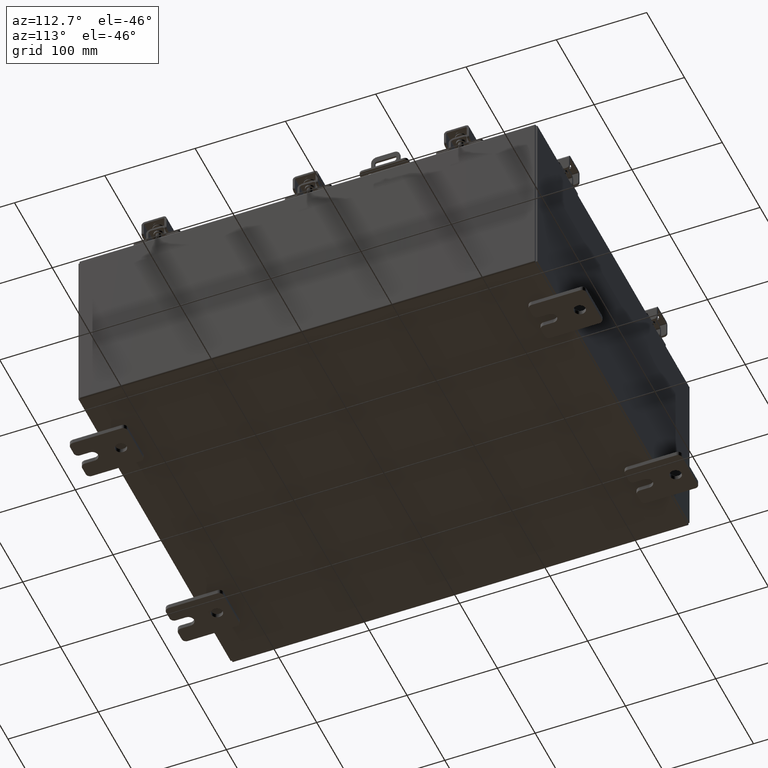
[diagram: clean part render]
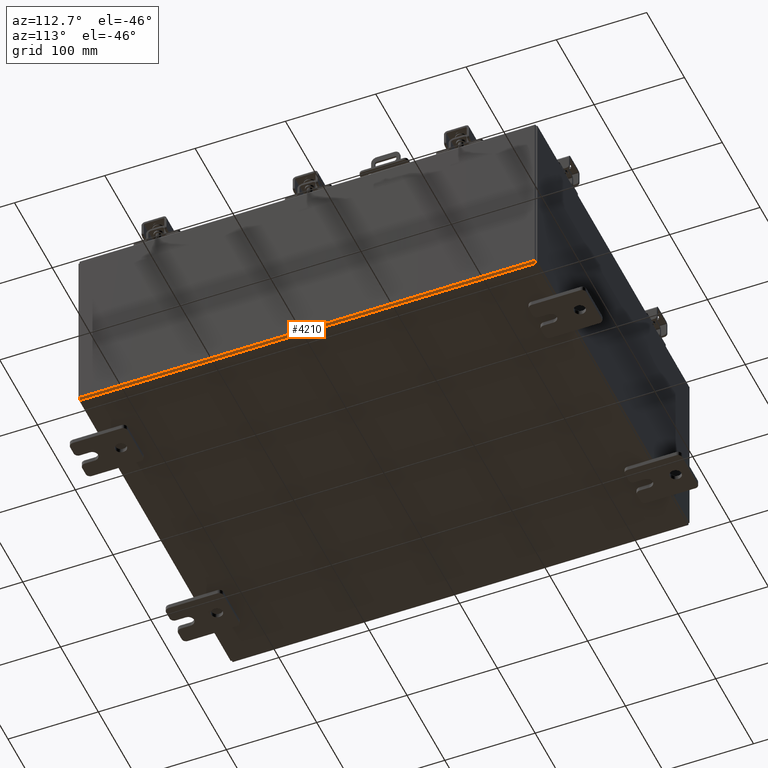
[diagram: same view with one face highlighted and labeled with its STEP entity id]
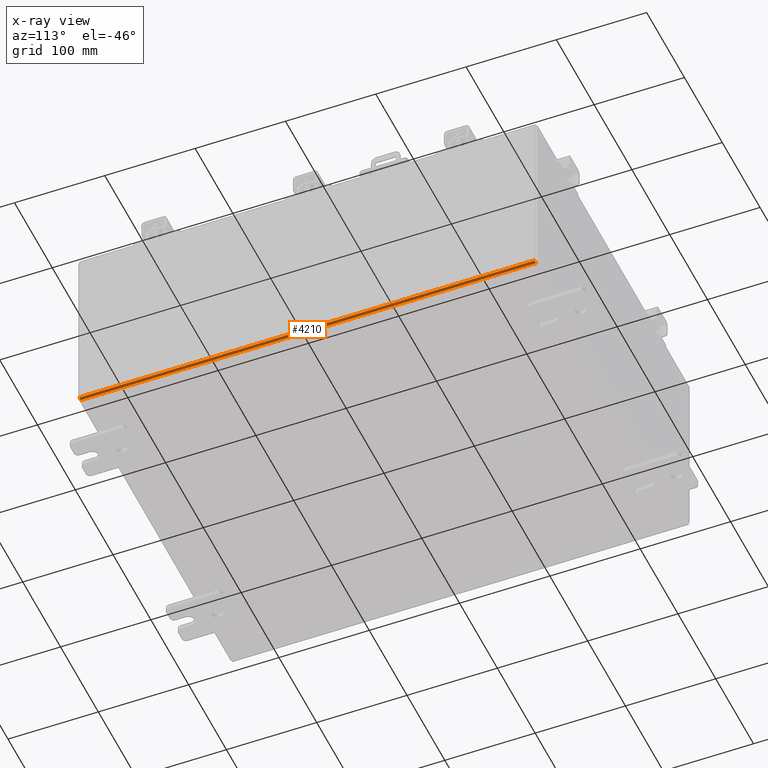
[diagram: x-ray of the same camera — body ghosted, the highlighted face saturated]
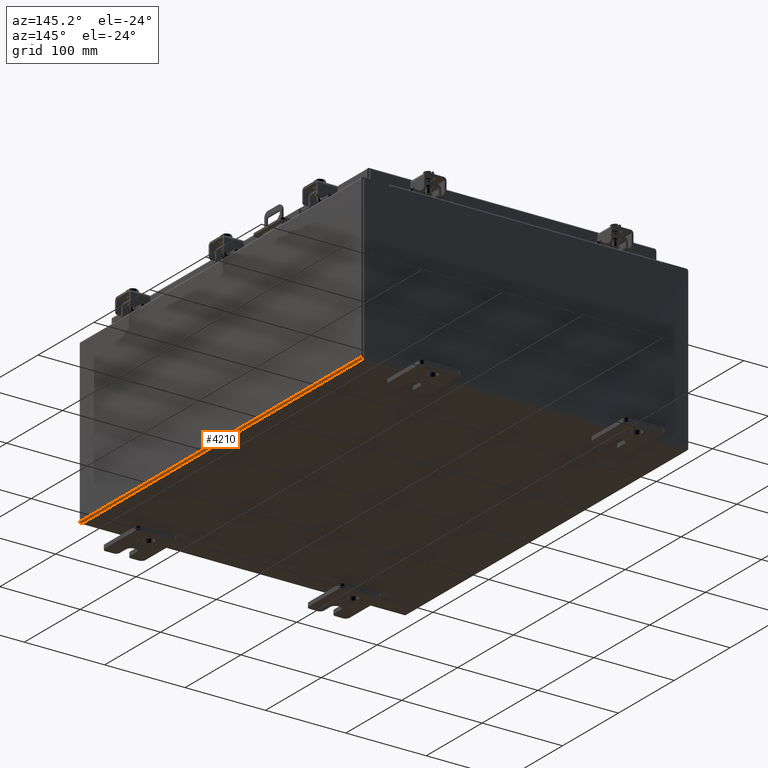
[diagram: same view with one face highlighted and labeled with its STEP entity id]
A machine part, auxiliary view. The second image highlights one B-rep face of the part: STEP entity #4210.
The next image is the same camera in x-ray: the body ghosted, the highlighted face saturated — about 0% of this face is hidden behind the body in this view.
A second angle (auxiliary view) of the same face is appended — the face is thin or edge-on in the first view.
In plain terms, the highlighted cylindrical surface (edge-blend (fillet) strip) has radius 2.2276 mm, axis along (0, 1, 0).
Its self-contained STEP definition (entity closure, byte-faithful):
#564 = EDGE_LOOP ( 'NONE', ( #10200, #19105, #8780, #1714 ) ) ;
#1714 = ORIENTED_EDGE ( 'NONE', *, *, #6107, .F. ) ;
#3568 = DIRECTION ( 'NONE',  ( -0.0000000000000000000, -1.000000000000000000, -0.0000000000000000000 ) ) ;
#4210 = ADVANCED_FACE ( 'NONE', ( #17763 ), #7983, .T. ) ;
#5288 = CARTESIAN_POINT ( 'NONE',  ( 8.000000000000001800, -9.925300000000001800, 0.01299999999999984700 ) ) ;
#6107 = EDGE_CURVE ( 'NONE', #12294, #8137, #12807, .T. ) ;
#6662 = EDGE_CURVE ( 'NONE', #7729, #12294, #13334, .T. ) ;
#7146 = AXIS2_PLACEMENT_3D ( 'NONE', #17879, #7474, #19637 ) ;
#7474 = DIRECTION ( 'NONE',  ( -0.0000000000000000000, -1.000000000000000000, -0.0000000000000000000 ) ) ;
#7614 = CARTESIAN_POINT ( 'NONE',  ( 8.000000000000001800, -9.925300000000001800, 0.01299999999999984800 ) ) ;
#7692 = VERTEX_POINT ( 'NONE', #8320 ) ;
#7729 = VERTEX_POINT ( 'NONE', #17143 ) ;
#7983 = CYLINDRICAL_SURFACE ( 'NONE', #13264, 0.08770000000000026400 ) ;
#8137 = VERTEX_POINT ( 'NONE', #7614 ) ;
#8292 = CARTESIAN_POINT ( 'NONE',  ( 7.912300000000001900, 9.925299999999998200, 0.01300000000000015200 ) ) ;
#8320 = CARTESIAN_POINT ( 'NONE',  ( 8.000000000000001800, 9.925299999999996500, 0.01299999999999984700 ) ) ;
#8476 = DIRECTION ( 'NONE',  ( 0.0000000000000000000, 1.000000000000000000, 0.0000000000000000000 ) ) ;
#8780 = ORIENTED_EDGE ( 'NONE', *, *, #9654, .T. ) ;
#9654 = EDGE_CURVE ( 'NONE', #7692, #8137, #11651, .T. ) ;
#10200 = ORIENTED_EDGE ( 'NONE', *, *, #6662, .F. ) ;
#10411 = CIRCLE ( 'NONE', #10726, 0.08770000000000009700 ) ;
#10726 = AXIS2_PLACEMENT_3D ( 'NONE', #18881, #8476, #20625 ) ;
#11651 = LINE ( 'NONE', #5288, #20328 ) ;
#12294 = VERTEX_POINT ( 'NONE', #21963 ) ;
#12807 = CIRCLE ( 'NONE', #7146, 0.08770000000000009700 ) ;
#13264 = AXIS2_PLACEMENT_3D ( 'NONE', #8292, #20449, #13822 ) ;
#13334 = LINE ( 'NONE', #15731, #17929 ) ;
#13516 = EDGE_CURVE ( 'NONE', #7692, #7729, #10411, .T. ) ;
#13822 = DIRECTION ( 'NONE',  ( 1.000000000000000000, 0.0000000000000000000, -3.455694262224952200E-015 ) ) ;
#15681 = DIRECTION ( 'NONE',  ( -0.0000000000000000000, -1.000000000000000000, -0.0000000000000000000 ) ) ;
#15731 = CARTESIAN_POINT ( 'NONE',  ( 7.912300000000001900, 9.925299999999998200, -0.07469999999999994700 ) ) ;
#17143 = CARTESIAN_POINT ( 'NONE',  ( 7.912300000000001900, 9.925299999999996500, -0.07469999999999994700 ) ) ;
#17763 = FACE_OUTER_BOUND ( 'NONE', #564, .T. ) ;
#17879 = CARTESIAN_POINT ( 'NONE',  ( 7.912300000000001900, -9.925300000000001800, 0.01300000000000015200 ) ) ;
#17929 = VECTOR ( 'NONE', #3568, 39.37007874015748100 ) ;
#18881 = CARTESIAN_POINT ( 'NONE',  ( 7.912300000000001900, 9.925299999999996500, 0.01300000000000015200 ) ) ;
#19105 = ORIENTED_EDGE ( 'NONE', *, *, #13516, .F. ) ;
#19637 = DIRECTION ( 'NONE',  ( 0.0000000000000000000, 0.0000000000000000000, 1.000000000000000000 ) ) ;
#20328 = VECTOR ( 'NONE', #15681, 39.37007874015748100 ) ;
#20449 = DIRECTION ( 'NONE',  ( 0.0000000000000000000, 1.000000000000000000, 0.0000000000000000000 ) ) ;
#20625 = DIRECTION ( 'NONE',  ( 0.0000000000000000000, 0.0000000000000000000, 1.000000000000000000 ) ) ;
#21963 = CARTESIAN_POINT ( 'NONE',  ( 7.912300000000001900, -9.925300000000001800, -0.07470000000000000300 ) ) ;